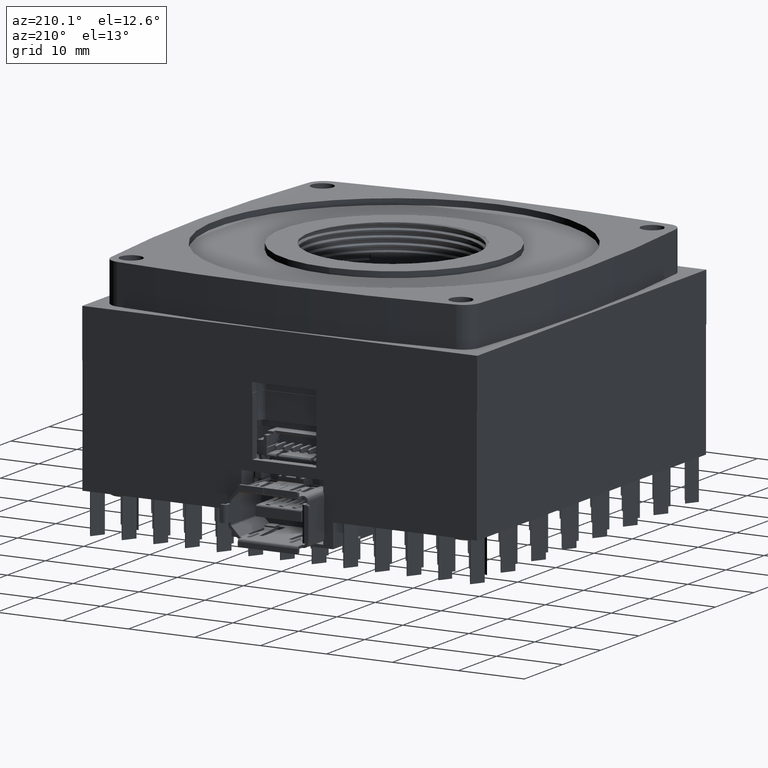
[diagram: clean part render]
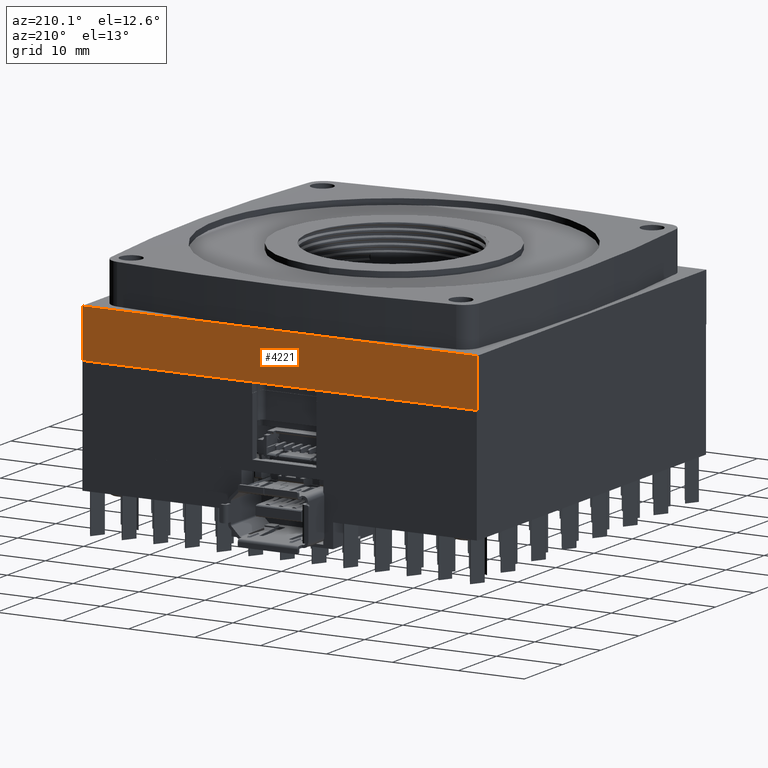
[diagram: same view with one face highlighted and labeled with its STEP entity id]
A machine part, auxiliary view. The second image highlights one B-rep face of the part: STEP entity #4221.
In plain terms, the highlighted planar face has unit normal (0, 1, 0).
Its self-contained STEP definition (entity closure, byte-faithful):
#948=PLANE('',#51834);
#4221=ADVANCED_FACE('',(#7399),#948,.T.);
#7399=FACE_OUTER_BOUND('',#9886,.T.);
#9886=EDGE_LOOP('',(#25235,#25236,#25237,#25238));
#13345=LINE('',#69255,#19226);
#13348=LINE('',#69275,#19229);
#13352=LINE('',#69284,#19233);
#13353=LINE('',#69285,#19234);
#19226=VECTOR('',#55635,1.);
#19229=VECTOR('',#55658,1.);
#19233=VECTOR('',#55664,1.);
#19234=VECTOR('',#55665,1.);
#25235=ORIENTED_EDGE('',*,*,#43871,.T.);
#25236=ORIENTED_EDGE('',*,*,#43867,.T.);
#25237=ORIENTED_EDGE('',*,*,#43872,.F.);
#25238=ORIENTED_EDGE('',*,*,#43855,.T.);
#39134=VERTEX_POINT('',#69253);
#39136=VERTEX_POINT('',#69256);
#39143=VERTEX_POINT('',#69276);
#39144=VERTEX_POINT('',#69277);
#43855=EDGE_CURVE('',#39136,#39134,#13345,.T.);
#43867=EDGE_CURVE('',#39143,#39144,#13348,.T.);
#43871=EDGE_CURVE('',#39134,#39143,#13352,.T.);
#43872=EDGE_CURVE('',#39136,#39144,#13353,.T.);
#51834=AXIS2_PLACEMENT_3D('',#69286,#55666,#55667);
#55635=DIRECTION('',(1.,0.,0.));
#55658=DIRECTION('',(-1.,0.,0.));
#55664=DIRECTION('',(0.,0.,1.));
#55665=DIRECTION('',(0.,0.,1.));
#55666=DIRECTION('',(0.,-1.,0.));
#55667=DIRECTION('',(0.,0.,-1.));
#69253=CARTESIAN_POINT('',(59.95,0.05,0.));
#69255=CARTESIAN_POINT('',(30.,0.05,0.));
#69256=CARTESIAN_POINT('',(0.05,0.05,0.));
#69275=CARTESIAN_POINT('',(30.,0.05,7.34));
#69276=CARTESIAN_POINT('',(59.95,0.05,7.34));
#69277=CARTESIAN_POINT('',(0.0500000000000014,0.05,7.34));
#69284=CARTESIAN_POINT('',(59.95,0.05,0.));
#69285=CARTESIAN_POINT('',(0.05,0.05,0.));
#69286=CARTESIAN_POINT('',(30.,0.05,0.));